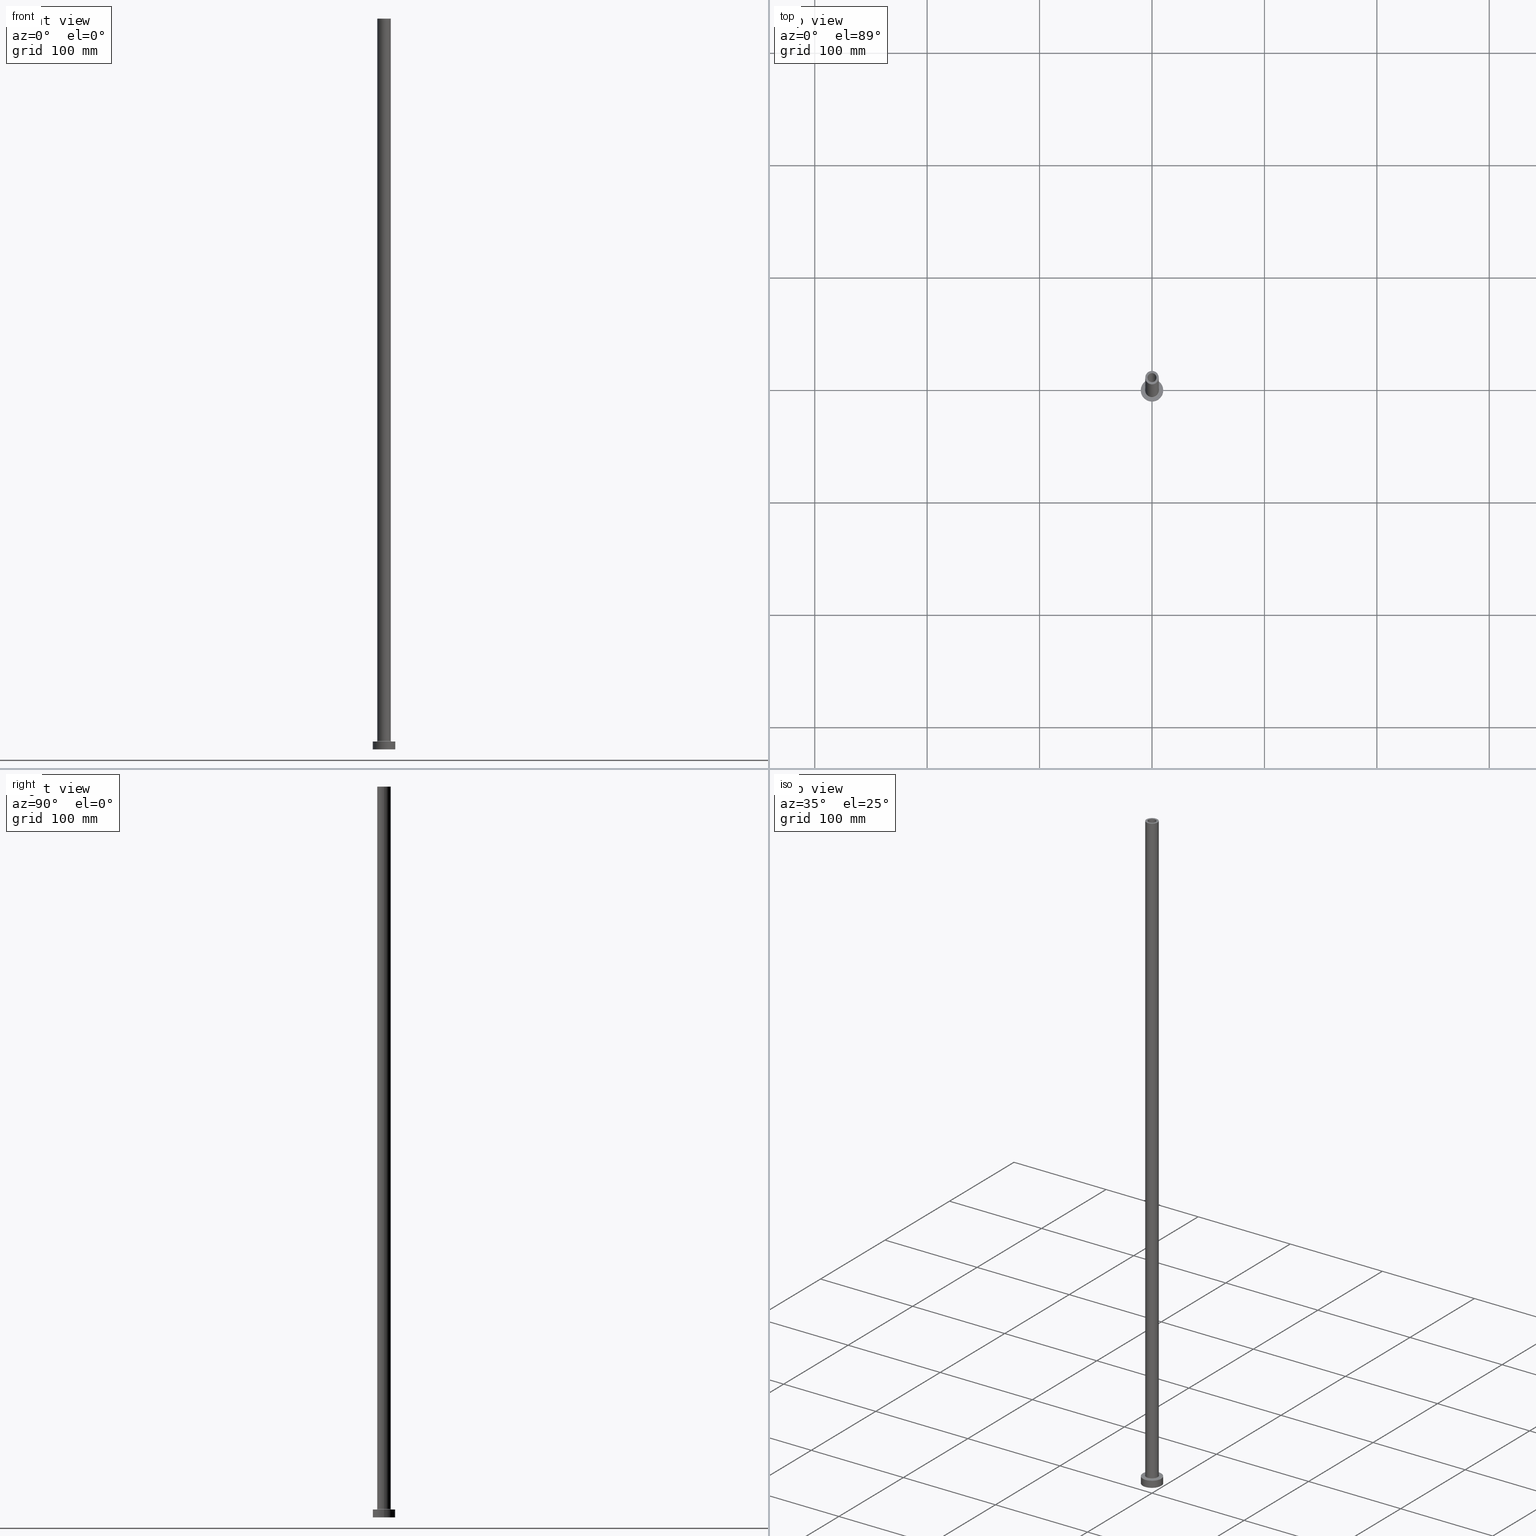
[diagram: canonical four-view strip — front | top / right | iso, engineering-drawing reading convention]
A machine part, canonical four-view strip (front | top / right | iso — engineering-drawing reading convention). The complete STEP part file that produces these views, byte-faithful:
ISO-10303-21;
HEADER;
FILE_DESCRIPTION (( 'STEP AP203' ),
    '1' );
FILE_NAME ('916c.STEP',
    '2023-02-13T12:42:46',
    ( '' ),
    ( '' ),
    'SwSTEP 2.0',
    'SolidWorks 2019',
    '' );
FILE_SCHEMA (( 'CONFIG_CONTROL_DESIGN' ));
ENDSEC;

DATA;
#1 = DIRECTION ( 'NONE',  ( 1.000000000000000000, 0.000000000000000000, 0.000000000000000000 ) ) ;
#2 = ADVANCED_FACE ( 'NONE', ( #196 ), #406, .F. ) ;
#3 = DIRECTION ( 'NONE',  ( 1.000000000000000000, 0.000000000000000000, 0.000000000000000000 ) ) ;
#4 = CIRCLE ( 'NONE', #147, 0.7000000000000000666 ) ;
#5 = AXIS2_PLACEMENT_3D ( 'NONE', #193, #288, #90 ) ;
#6 = PERSON_AND_ORGANIZATION_ROLE ( 'creator' ) ;
#7 = DIRECTION ( 'NONE',  ( 0.000000000000000000, 0.000000000000000000, -1.000000000000000000 ) ) ;
#8 = FACE_OUTER_BOUND ( 'NONE', #334, .T. ) ;
#9 = DIRECTION ( 'NONE',  ( 1.000000000000000000, 0.000000000000000000, 0.000000000000000000 ) ) ;
#10 = APPROVAL_STATUS ( 'not_yet_approved' ) ;
#11 = CARTESIAN_POINT ( 'NONE',  ( -4.000000000000000000, 0.000000000000000000, 650.0000000000000000 ) ) ;
#12 = PRODUCT ( '916c', '916c', '', ( #375 ) ) ;
#13 = AXIS2_PLACEMENT_3D ( 'NONE', #162, #256, #84 ) ;
#14 = DIRECTION ( 'NONE',  ( -0.000000000000000000, -0.000000000000000000, -1.000000000000000000 ) ) ;
#15 = DIRECTION ( 'NONE',  ( 1.000000000000000000, 0.000000000000000000, 0.000000000000000000 ) ) ;
#16 = EDGE_CURVE ( 'NONE', #115, #215, #354, .T. ) ;
#17 = ADVANCED_FACE ( 'NONE', ( #43 ), #257, .F. ) ;
#18 = ORIENTED_EDGE ( 'NONE', *, *, #16, .F. ) ;
#19 = PERSON ( 'NEUR�EN�', 'NEUR�EN�', 'NEUR�EN�', ('NEUR�EN�'), ('NEUR�EN�'), ('NEUR�EN�') ) ;
#20 = AXIS2_PLACEMENT_3D ( 'NONE', #435, #431, #328 ) ;
#21 = AXIS2_PLACEMENT_3D ( 'NONE', #271, #104, #226 ) ;
#22 = FACE_OUTER_BOUND ( 'NONE', #415, .T. ) ;
#23 = ORIENTED_EDGE ( 'NONE', *, *, #253, .F. ) ;
#24 = EDGE_CURVE ( 'NONE', #237, #235, #102, .T. ) ;
#25 = CARTESIAN_POINT ( 'NONE',  ( 0.000000000000000000, 0.000000000000000000, 650.0000000000000000 ) ) ;
#26 = EDGE_LOOP ( 'NONE', ( #40, #403, #383, #18 ) ) ;
#27 = ADVANCED_FACE ( 'NONE', ( #22 ), #363, .F. ) ;
#28 = ORIENTED_EDGE ( 'NONE', *, *, #108, .T. ) ;
#29 = AXIS2_PLACEMENT_3D ( 'NONE', #285, #434, #123 ) ;
#30 = CARTESIAN_POINT ( 'NONE',  ( 4.000000000000000000, 4.898587196589412829E-16, 605.0000000000000000 ) ) ;
#31 = EDGE_LOOP ( 'NONE', ( #404, #449, #278, #336 ) ) ;
#32 = CYLINDRICAL_SURFACE ( 'NONE', #122, 4.150000000000000355 ) ;
#33 = ORIENTED_EDGE ( 'NONE', *, *, #428, .F. ) ;
#34 = PRODUCT_RELATED_PRODUCT_CATEGORY ( 'detail', '', ( #12 ) ) ;
#35 = DIRECTION ( 'NONE',  ( -1.000000000000000000, 0.000000000000000000, 0.000000000000000000 ) ) ;
#36 = ORIENTED_EDGE ( 'NONE', *, *, #107, .T. ) ;
#37 =( NAMED_UNIT ( * ) PLANE_ANGLE_UNIT ( ) SI_UNIT ( $, .RADIAN. ) );
#38 = AXIS2_PLACEMENT_3D ( 'NONE', #353, #185, #361 ) ;
#39 = DIRECTION ( 'NONE',  ( -1.000000000000000000, 0.000000000000000000, 0.000000000000000000 ) ) ;
#40 = ORIENTED_EDGE ( 'NONE', *, *, #165, .T. ) ;
#41 = COORDINATED_UNIVERSAL_TIME_OFFSET ( 1, 0, .AHEAD. ) ;
#42 = ADVANCED_FACE ( 'NONE', ( #66, #300 ), #61, .F. ) ;
#43 = FACE_OUTER_BOUND ( 'NONE', #95, .T. ) ;
#44 = APPROVAL_ROLE ( '' ) ;
#45 = CARTESIAN_POINT ( 'NONE',  ( -6.700000000000001066, 8.205133554287267548E-16, 7.000000000000020428 ) ) ;
#46 = VECTOR ( 'NONE', #405, 1000.000000000000000 ) ;
#47 = PERSON_AND_ORGANIZATION_ROLE ( 'design_supplier' ) ;
#48 = CC_DESIGN_SECURITY_CLASSIFICATION ( #303, ( #141 ) ) ;
#49 = CARTESIAN_POINT ( 'NONE',  ( 6.700000000000001066, 0.000000000000000000, 7.000000000000020428 ) ) ;
#50 = EDGE_CURVE ( 'NONE', #235, #237, #302, .T. ) ;
#51 = FACE_BOUND ( 'NONE', #217, .T. ) ;
#52 = VERTEX_POINT ( 'NONE', #438 ) ;
#53 = CARTESIAN_POINT ( 'NONE',  ( 0.000000000000000000, 0.000000000000000000, 605.0000000000000000 ) ) ;
#54 = CIRCLE ( 'NONE', #337, 4.000000000000000000 ) ;
#55 = ORIENTED_EDGE ( 'NONE', *, *, #392, .T. ) ;
#56 = APPROVAL_PERSON_ORGANIZATION ( #380, #58, #44 ) ;
#57 = CARTESIAN_POINT ( 'NONE',  ( 0.000000000000000000, 0.000000000000000000, 605.0000000000000000 ) ) ;
#58 = APPROVAL ( #10, 'NEUR�EN�' ) ;
#59 = CARTESIAN_POINT ( 'NONE',  ( -6.000000000000000888, 0.000000000000000000, 650.0000000000000000 ) ) ;
#60 = DIRECTION ( 'NONE',  ( 0.000000000000000000, 0.000000000000000000, -1.000000000000000000 ) ) ;
#61 = PLANE ( 'NONE',  #246 ) ;
#62 = ORIENTED_EDGE ( 'NONE', *, *, #429, .F. ) ;
#63 = FACE_OUTER_BOUND ( 'NONE', #171, .T. ) ;
#64 = ORIENTED_EDGE ( 'NONE', *, *, #119, .T. ) ;
#65 = AXIS2_PLACEMENT_3D ( 'NONE', #379, #114, #347 ) ;
#66 = FACE_BOUND ( 'NONE', #232, .T. ) ;
#67 = ORIENTED_EDGE ( 'NONE', *, *, #79, .T. ) ;
#68 = EDGE_CURVE ( 'NONE', #268, #295, #417, .T. ) ;
#69 = ORIENTED_EDGE ( 'NONE', *, *, #329, .T. ) ;
#70 = LINE ( 'NONE', #345, #407 ) ;
#71 = CARTESIAN_POINT ( 'NONE',  ( 0.000000000000000000, 0.000000000000000000, 650.0000000000000000 ) ) ;
#72 = ORIENTED_EDGE ( 'NONE', *, *, #378, .F. ) ;
#73 = VECTOR ( 'NONE', #14, 1000.000000000000000 ) ;
#74 = CIRCLE ( 'NONE', #176, 4.000000000000000000 ) ;
#75 = DIRECTION ( 'NONE',  ( -0.000000000000000000, -0.000000000000000000, -1.000000000000000000 ) ) ;
#76 = FACE_OUTER_BOUND ( 'NONE', #91, .T. ) ;
#77 = FACE_OUTER_BOUND ( 'NONE', #145, .T. ) ;
#78 = ORIENTED_EDGE ( 'NONE', *, *, #198, .T. ) ;
#79 = EDGE_CURVE ( 'NONE', #394, #282, #4, .T. ) ;
#80 = PLANE ( 'NONE',  #166 ) ;
#81 = AXIS2_PLACEMENT_3D ( 'NONE', #57, #94, #332 ) ;
#82 = DATE_AND_TIME ( #291, #418 ) ;
#83 = APPLICATION_CONTEXT ( 'configuration controlled 3d designs of mechanical parts and assemblies' ) ;
#84 = DIRECTION ( 'NONE',  ( 1.000000000000000000, 0.000000000000000000, 0.000000000000000000 ) ) ;
#85 = EDGE_LOOP ( 'NONE', ( #455, #69 ) ) ;
#86 = COORDINATED_UNIVERSAL_TIME_OFFSET ( 1, 0, .AHEAD. ) ;
#87 = DIRECTION ( 'NONE',  ( 1.000000000000000000, 0.000000000000000000, 0.000000000000000000 ) ) ;
#88 = ORIENTED_EDGE ( 'NONE', *, *, #50, .T. ) ;
#89 = CALENDAR_DATE ( 2023, 13, 2 ) ;
#90 = DIRECTION ( 'NONE',  ( 1.000000000000000000, 0.000000000000000000, -0.000000000000000000 ) ) ;
#91 = EDGE_LOOP ( 'NONE', ( #180, #286, #55, #88 ) ) ;
#92 = AXIS2_PLACEMENT_3D ( 'NONE', #362, #222, #3 ) ;
#93 = SECURITY_CLASSIFICATION_LEVEL ( 'unclassified' ) ;
#94 = DIRECTION ( 'NONE',  ( 0.000000000000000000, 0.000000000000000000, 1.000000000000000000 ) ) ;
#95 = EDGE_LOOP ( 'NONE', ( #28, #327, #177, #376 ) ) ;
#96 = AXIS2_PLACEMENT_3D ( 'NONE', #439, #398, #200 ) ;
#97 = DIRECTION ( 'NONE',  ( 1.000000000000000000, 0.000000000000000000, 0.000000000000000000 ) ) ;
#98 = EDGE_LOOP ( 'NONE', ( #178, #67, #243, #442 ) ) ;
#99 = DIRECTION ( 'NONE',  ( 1.000000000000000000, 0.000000000000000000, 0.000000000000000000 ) ) ;
#100 = VERTEX_POINT ( 'NONE', #59 ) ;
#101 = ORIENTED_EDGE ( 'NONE', *, *, #128, .F. ) ;
#102 = CIRCLE ( 'NONE', #350, 4.150000000000000355 ) ;
#103 = AXIS2_PLACEMENT_3D ( 'NONE', #118, #7, #39 ) ;
#104 = DIRECTION ( 'NONE',  ( -0.000000000000000000, -0.000000000000000000, -1.000000000000000000 ) ) ;
#105 = DESIGN_CONTEXT ( 'detailed design', #83, 'design' ) ;
#106 = CARTESIAN_POINT ( 'NONE',  ( 0.000000000000000000, 0.000000000000000000, 0.000000000000000000 ) ) ;
#107 = EDGE_CURVE ( 'NONE', #52, #305, #132, .T. ) ;
#108 = EDGE_CURVE ( 'NONE', #153, #290, #359, .T. ) ;
#109 = DIRECTION ( 'NONE',  ( 0.000000000000000000, 0.000000000000000000, -1.000000000000000000 ) ) ;
#110 = ORIENTED_EDGE ( 'NONE', *, *, #116, .T. ) ;
#111 = AXIS2_PLACEMENT_3D ( 'NONE', #333, #138, #97 ) ;
#112 = LOCAL_TIME ( 13, 42, 46.00000000000000000, #258 ) ;
#113 = VERTEX_POINT ( 'NONE', #440 ) ;
#114 = DIRECTION ( 'NONE',  ( 0.000000000000000000, 0.000000000000000000, 1.000000000000000000 ) ) ;
#115 = VERTEX_POINT ( 'NONE', #365 ) ;
#116 = EDGE_CURVE ( 'NONE', #157, #52, #381, .T. ) ;
#117 = APPLICATION_PROTOCOL_DEFINITION ( 'international standard', 'config_control_design', 1994, #409 ) ;
#118 = CARTESIAN_POINT ( 'NONE',  ( 0.000000000000000000, 0.000000000000000000, 650.0000000000000000 ) ) ;
#119 = EDGE_CURVE ( 'NONE', #113, #305, #252, .T. ) ;
#120 = CALENDAR_DATE ( 2023, 13, 2 ) ;
#121 = CARTESIAN_POINT ( 'NONE',  ( -10.00000000000000000, 0.000000000000000000, 0.000000000000000000 ) ) ;
#122 = AXIS2_PLACEMENT_3D ( 'NONE', #150, #109, #384 ) ;
#123 = DIRECTION ( 'NONE',  ( 1.000000000000000000, 0.000000000000000000, 0.000000000000000000 ) ) ;
#124 = AXIS2_PLACEMENT_3D ( 'NONE', #159, #355, #87 ) ;
#125 = SHAPE_DEFINITION_REPRESENTATION ( #134, #195 ) ;
#126 = DIRECTION ( 'NONE',  ( 0.000000000000000000, 0.000000000000000000, -1.000000000000000000 ) ) ;
#127 = CARTESIAN_POINT ( 'NONE',  ( 4.150000000000000355, 5.082284216461515156E-16, 605.0000000000000000 ) ) ;
#128 = EDGE_CURVE ( 'NONE', #158, #115, #54, .T. ) ;
#129 = PERSON_AND_ORGANIZATION_ROLE ( 'classification_officer' ) ;
#130 = ORIENTED_EDGE ( 'NONE', *, *, #119, .F. ) ;
#131 = AXIS2_PLACEMENT_3D ( 'NONE', #184, #424, #391 ) ;
#132 = LINE ( 'NONE', #330, #73 ) ;
#133 = APPROVAL ( #386, 'NEUR�EN�' ) ;
#134 = PRODUCT_DEFINITION_SHAPE ( 'NONE', 'NONE',  #448 ) ;
#135 = DIRECTION ( 'NONE',  ( 0.000000000000000000, -1.000000000000000000, 0.000000000000000000 ) ) ;
#136 = ADVANCED_FACE ( 'NONE', ( #76 ), #32, .F. ) ;
#137 = EDGE_LOOP ( 'NONE', ( #173, #130 ) ) ;
#138 = DIRECTION ( 'NONE',  ( 0.000000000000000000, 0.000000000000000000, 1.000000000000000000 ) ) ;
#139 = AXIS2_PLACEMENT_3D ( 'NONE', #441, #135, #239 ) ;
#140 = ORIENTED_EDGE ( 'NONE', *, *, #107, .F. ) ;
#141 = PRODUCT_DEFINITION_FORMATION_WITH_SPECIFIED_SOURCE ( 'LIBOVOLN�', '', #12, .NOT_KNOWN. ) ;
#142 = CARTESIAN_POINT ( 'NONE',  ( 4.150000000000000355, 5.082284216461515156E-16, 616.7379725676967155 ) ) ;
#143 = CARTESIAN_POINT ( 'NONE',  ( 0.000000000000000000, 0.000000000000000000, 650.0000000000000000 ) ) ;
#144 = CC_DESIGN_PERSON_AND_ORGANIZATION_ASSIGNMENT ( #358, #6, ( #141 ) ) ;
#145 = EDGE_LOOP ( 'NONE', ( #344, #274, #148, #33 ) ) ;
#146 = VERTEX_POINT ( 'NONE', #30 ) ;
#147 = AXIS2_PLACEMENT_3D ( 'NONE', #207, #341, #262 ) ;
#148 = ORIENTED_EDGE ( 'NONE', *, *, #260, .T. ) ;
#149 = EDGE_CURVE ( 'NONE', #158, #146, #156, .T. ) ;
#150 = CARTESIAN_POINT ( 'NONE',  ( 0.000000000000000000, 0.000000000000000000, 616.7379725676967155 ) ) ;
#151 =( LENGTH_UNIT ( ) NAMED_UNIT ( * ) SI_UNIT ( .MILLI., .METRE. ) );
#152 = DIRECTION ( 'NONE',  ( 0.000000000000000000, 0.000000000000000000, 1.000000000000000000 ) ) ;
#153 = VERTEX_POINT ( 'NONE', #309 ) ;
#154 = VECTOR ( 'NONE', #275, 1000.000000000000000 ) ;
#155 = CC_DESIGN_APPROVAL ( #133, ( #303 ) ) ;
#156 = LINE ( 'NONE', #453, #154 ) ;
#157 = VERTEX_POINT ( 'NONE', #414 ) ;
#158 = VERTEX_POINT ( 'NONE', #277 ) ;
#159 = CARTESIAN_POINT ( 'NONE',  ( 0.000000000000000000, 0.000000000000000000, 7.700000000000040146 ) ) ;
#160 = CC_DESIGN_DATE_AND_TIME_ASSIGNMENT ( #351, #352, ( #448 ) ) ;
#161 = CARTESIAN_POINT ( 'NONE',  ( 0.000000000000000000, 0.000000000000000000, 605.0000000000000000 ) ) ;
#162 = CARTESIAN_POINT ( 'NONE',  ( 0.000000000000000000, 0.000000000000000000, 0.000000000000000000 ) ) ;
#163 = DIRECTION ( 'NONE',  ( 0.000000000000000000, 0.000000000000000000, 1.000000000000000000 ) ) ;
#164 = PLANE ( 'NONE',  #5 ) ;
#165 = EDGE_CURVE ( 'NONE', #115, #158, #74, .T. ) ;
#166 = AXIS2_PLACEMENT_3D ( 'NONE', #161, #223, #289 ) ;
#167 = CYLINDRICAL_SURFACE ( 'NONE', #96, 10.00000000000000000 ) ;
#168 = CARTESIAN_POINT ( 'NONE',  ( 0.000000000000000000, 0.000000000000000000, 605.0000000000000000 ) ) ;
#169 = EDGE_LOOP ( 'NONE', ( #187, #422 ) ) ;
#170 = APPROVAL_PERSON_ORGANIZATION ( #192, #133, #317 ) ;
#171 = EDGE_LOOP ( 'NONE', ( #62, #204, #36, #402 ) ) ;
#172 = DIRECTION ( 'NONE',  ( 0.000000000000000000, 0.000000000000000000, 1.000000000000000000 ) ) ;
#173 = ORIENTED_EDGE ( 'NONE', *, *, #293, .F. ) ;
#174 = APPLICATION_PROTOCOL_DEFINITION ( 'international standard', 'config_control_design', 1994, #83 ) ;
#175 = EDGE_CURVE ( 'NONE', #295, #282, #199, .T. ) ;
#176 = AXIS2_PLACEMENT_3D ( 'NONE', #242, #245, #273 ) ;
#177 = ORIENTED_EDGE ( 'NONE', *, *, #24, .T. ) ;
#178 = ORIENTED_EDGE ( 'NONE', *, *, #314, .F. ) ;
#179 = MANIFOLD_SOLID_BREP ( 'Odebrat vysunut�m4', #400 ) ;
#180 = ORIENTED_EDGE ( 'NONE', *, *, #348, .F. ) ;
#181 = ADVANCED_FACE ( 'NONE', ( #249 ), #281, .T. ) ;
#182 = FACE_OUTER_BOUND ( 'NONE', #313, .T. ) ;
#183 = CALENDAR_DATE ( 2023, 13, 2 ) ;
#184 = CARTESIAN_POINT ( 'NONE',  ( 0.000000000000000000, 0.000000000000000000, 7.700000000000040146 ) ) ;
#185 = DIRECTION ( 'NONE',  ( 0.000000000000000000, 0.000000000000000000, 1.000000000000000000 ) ) ;
#186 = EDGE_CURVE ( 'NONE', #52, #157, #338, .T. ) ;
#187 = ORIENTED_EDGE ( 'NONE', *, *, #421, .T. ) ;
#188 = ADVANCED_FACE ( 'NONE', ( #77 ), #211, .T. ) ;
#189 = APPROVAL_DATE_TIME ( #296, #444 ) ;
#190 = CIRCLE ( 'NONE', #21, 6.700000000000001066 ) ;
#191 = ORIENTED_EDGE ( 'NONE', *, *, #175, .T. ) ;
#192 = PERSON_AND_ORGANIZATION ( #19, #401 ) ;
#193 = CARTESIAN_POINT ( 'NONE',  ( 0.000000000000000000, 0.000000000000000000, 7.000000000000000000 ) ) ;
#194 = CARTESIAN_POINT ( 'NONE',  ( -4.150000000000000355, 0.000000000000000000, 0.000000000000000000 ) ) ;
#195 = ADVANCED_BREP_SHAPE_REPRESENTATION ( '916c', ( #179, #254 ), #389 ) ;
#196 = FACE_OUTER_BOUND ( 'NONE', #98, .T. ) ;
#197 = DIRECTION ( 'NONE',  ( 0.000000000000000000, 0.000000000000000000, 1.000000000000000000 ) ) ;
#198 = EDGE_CURVE ( 'NONE', #282, #295, #190, .T. ) ;
#199 = CIRCLE ( 'NONE', #426, 6.700000000000001066 ) ;
#200 = DIRECTION ( 'NONE',  ( -1.000000000000000000, 0.000000000000000000, 0.000000000000000000 ) ) ;
#201 = DIRECTION ( 'NONE',  ( 0.000000000000000000, 0.000000000000000000, -1.000000000000000000 ) ) ;
#202 = CARTESIAN_POINT ( 'NONE',  ( -6.000000000000000888, 0.000000000000000000, 7.700000000000040146 ) ) ;
#203 = DIRECTION ( 'NONE',  ( -1.000000000000000000, 0.000000000000000000, 0.000000000000000000 ) ) ;
#204 = ORIENTED_EDGE ( 'NONE', *, *, #186, .F. ) ;
#205 = ADVANCED_FACE ( 'NONE', ( #356 ), #323, .F. ) ;
#206 = AXIS2_PLACEMENT_3D ( 'NONE', #321, #326, #9 ) ;
#207 = CARTESIAN_POINT ( 'NONE',  ( -6.700000000000001066, 8.205133554287267548E-16, 7.700000000000040146 ) ) ;
#208 = EDGE_LOOP ( 'NONE', ( #370, #23, #342, #346 ) ) ;
#209 = PERSON_AND_ORGANIZATION ( #19, #401 ) ;
#210 = CC_DESIGN_PERSON_AND_ORGANIZATION_ASSIGNMENT ( #393, #47, ( #141 ) ) ;
#211 = CYLINDRICAL_SURFACE ( 'NONE', #248, 6.000000000000000888 ) ;
#212 = AXIS2_PLACEMENT_3D ( 'NONE', #53, #197, #99 ) ;
#213 = DIRECTION ( 'NONE',  ( 1.000000000000000000, 0.000000000000000000, 0.000000000000000000 ) ) ;
#214 = ADVANCED_FACE ( 'NONE', ( #228, #182 ), #80, .F. ) ;
#215 = VERTEX_POINT ( 'NONE', #259 ) ;
#216 = CARTESIAN_POINT ( 'NONE',  ( -6.000000000000000888, 0.000000000000000000, 650.0000000000000000 ) ) ;
#217 = EDGE_LOOP ( 'NONE', ( #191, #78 ) ) ;
#218 = AXIS2_PLACEMENT_3D ( 'NONE', #143, #201, #203 ) ;
#219 = ADVANCED_FACE ( 'NONE', ( #349, #315 ), #319, .T. ) ;
#220 = CIRCLE ( 'NONE', #29, 6.000000000000000888 ) ;
#221 = APPROVAL_DATE_TIME ( #82, #133 ) ;
#222 = DIRECTION ( 'NONE',  ( 0.000000000000000000, 0.000000000000000000, 1.000000000000000000 ) ) ;
#223 = DIRECTION ( 'NONE',  ( 0.000000000000000000, 0.000000000000000000, 1.000000000000000000 ) ) ;
#224 = ORIENTED_EDGE ( 'NONE', *, *, #50, .F. ) ;
#225 = CARTESIAN_POINT ( 'NONE',  ( 0.000000000000000000, 0.000000000000000000, 650.0000000000000000 ) ) ;
#226 = DIRECTION ( 'NONE',  ( 1.000000000000000000, 0.000000000000000000, 0.000000000000000000 ) ) ;
#227 = CALENDAR_DATE ( 2023, 13, 2 ) ;
#228 = FACE_BOUND ( 'NONE', #169, .T. ) ;
#229 = AXIS2_PLACEMENT_3D ( 'NONE', #436, #433, #318 ) ;
#230 = DATE_TIME_ROLE ( 'classification_date' ) ;
#231 = FACE_OUTER_BOUND ( 'NONE', #31, .T. ) ;
#232 = EDGE_LOOP ( 'NONE', ( #224, #374 ) ) ;
#233 = CIRCLE ( 'NONE', #92, 4.150000000000000355 ) ;
#234 = DIRECTION ( 'NONE',  ( 1.000000000000000000, 0.000000000000000000, 0.000000000000000000 ) ) ;
#235 = VERTEX_POINT ( 'NONE', #194 ) ;
#236 = LINE ( 'NONE', #443, #241 ) ;
#237 = VERTEX_POINT ( 'NONE', #459 ) ;
#238 = DIRECTION ( 'NONE',  ( 1.000000000000000000, 0.000000000000000000, -0.000000000000000000 ) ) ;
#239 = DIRECTION ( 'NONE',  ( 0.000000000000000000, 0.000000000000000000, -1.000000000000000000 ) ) ;
#240 = VECTOR ( 'NONE', #126, 1000.000000000000000 ) ;
#241 = VECTOR ( 'NONE', #371, 1000.000000000000000 ) ;
#242 = CARTESIAN_POINT ( 'NONE',  ( 0.000000000000000000, 0.000000000000000000, 650.0000000000000000 ) ) ;
#243 = ORIENTED_EDGE ( 'NONE', *, *, #175, .F. ) ;
#244 = PERSON_AND_ORGANIZATION_ROLE ( 'design_owner' ) ;
#245 = DIRECTION ( 'NONE',  ( 0.000000000000000000, 0.000000000000000000, 1.000000000000000000 ) ) ;
#246 = AXIS2_PLACEMENT_3D ( 'NONE', #267, #397, #238 ) ;
#247 = DIRECTION ( 'NONE',  ( -0.000000000000000000, -0.000000000000000000, -1.000000000000000000 ) ) ;
#248 = AXIS2_PLACEMENT_3D ( 'NONE', #25, #307, #447 ) ;
#249 = FACE_OUTER_BOUND ( 'NONE', #208, .T. ) ;
#250 = APPROVAL_STATUS ( 'not_yet_approved' ) ;
#251 = DATE_AND_TIME ( #120, #263 ) ;
#252 = CIRCLE ( 'NONE', #279, 10.00000000000000000 ) ;
#253 = EDGE_CURVE ( 'NONE', #100, #367, #220, .T. ) ;
#254 = AXIS2_PLACEMENT_3D ( 'NONE', #106, #343, #456 ) ;
#255 = VECTOR ( 'NONE', #60, 1000.000000000000000 ) ;
#256 = DIRECTION ( 'NONE',  ( 0.000000000000000000, 0.000000000000000000, 1.000000000000000000 ) ) ;
#257 = CYLINDRICAL_SURFACE ( 'NONE', #20, 4.150000000000000355 ) ;
#258 = COORDINATED_UNIVERSAL_TIME_OFFSET ( 1, 0, .AHEAD. ) ;
#259 = CARTESIAN_POINT ( 'NONE',  ( -4.000000000000000000, 0.000000000000000000, 605.0000000000000000 ) ) ;
#260 = EDGE_CURVE ( 'NONE', #268, #394, #451, .T. ) ;
#261 = UNCERTAINTY_MEASURE_WITH_UNIT (LENGTH_MEASURE( 1.000000000000000082E-05 ), #151, 'distance_accuracy_value', 'NONE');
#262 = DIRECTION ( 'NONE',  ( -1.000000000000000000, 1.224646799147353454E-16, 0.000000000000000000 ) ) ;
#263 = LOCAL_TIME ( 13, 42, 46.00000000000000000, #86 ) ;
#264 = DIRECTION ( 'NONE',  ( -0.000000000000000000, -0.000000000000000000, -1.000000000000000000 ) ) ;
#265 = ORIENTED_EDGE ( 'NONE', *, *, #149, .F. ) ;
#266 = CARTESIAN_POINT ( 'NONE',  ( 6.000000000000000888, 7.347880794884120722E-16, 650.0000000000000000 ) ) ;
#267 = CARTESIAN_POINT ( 'NONE',  ( 0.000000000000000000, 0.000000000000000000, 0.000000000000000000 ) ) ;
#268 = VERTEX_POINT ( 'NONE', #461 ) ;
#269 = ADVANCED_FACE ( 'NONE', ( #51, #8 ), #164, .T. ) ;
#270 = DIRECTION ( 'NONE',  ( 0.000000000000000000, 0.000000000000000000, 1.000000000000000000 ) ) ;
#271 = CARTESIAN_POINT ( 'NONE',  ( 0.000000000000000000, 0.000000000000000000, 7.000000000000000000 ) ) ;
#272 = CIRCLE ( 'NONE', #81, 4.000000000000000000 ) ;
#273 = DIRECTION ( 'NONE',  ( 1.000000000000000000, 0.000000000000000000, 0.000000000000000000 ) ) ;
#274 = ORIENTED_EDGE ( 'NONE', *, *, #340, .T. ) ;
#275 = DIRECTION ( 'NONE',  ( 0.000000000000000000, 0.000000000000000000, -1.000000000000000000 ) ) ;
#276 = CC_DESIGN_DATE_AND_TIME_ASSIGNMENT ( #460, #230, ( #303 ) ) ;
#277 = CARTESIAN_POINT ( 'NONE',  ( 4.000000000000000000, 4.898587196589412829E-16, 650.0000000000000000 ) ) ;
#278 = ORIENTED_EDGE ( 'NONE', *, *, #68, .T. ) ;
#279 = AXIS2_PLACEMENT_3D ( 'NONE', #454, #172, #408 ) ;
#280 = AXIS2_PLACEMENT_3D ( 'NONE', #71, #420, #35 ) ;
#281 = CYLINDRICAL_SURFACE ( 'NONE', #280, 6.000000000000000888 ) ;
#282 = VERTEX_POINT ( 'NONE', #45 ) ;
#283 = CC_DESIGN_PERSON_AND_ORGANIZATION_ASSIGNMENT ( #423, #427, ( #448 ) ) ;
#284 = APPROVAL_ROLE ( '' ) ;
#285 = CARTESIAN_POINT ( 'NONE',  ( 0.000000000000000000, 0.000000000000000000, 650.0000000000000000 ) ) ;
#286 = ORIENTED_EDGE ( 'NONE', *, *, #311, .T. ) ;
#287 = TOROIDAL_SURFACE ( 'NONE', #131, 6.700000000000001066, 0.6999999999999999556 ) ;
#288 = DIRECTION ( 'NONE',  ( 0.000000000000000000, 0.000000000000000000, 1.000000000000000000 ) ) ;
#289 = DIRECTION ( 'NONE',  ( 1.000000000000000000, 0.000000000000000000, -0.000000000000000000 ) ) ;
#290 = VERTEX_POINT ( 'NONE', #127 ) ;
#291 = CALENDAR_DATE ( 2023, 13, 2 ) ;
#292 = FACE_OUTER_BOUND ( 'NONE', #316, .T. ) ;
#293 = EDGE_CURVE ( 'NONE', #305, #113, #395, .T. ) ;
#294 = ADVANCED_FACE ( 'NONE', ( #292 ), #297, .T. ) ;
#295 = VERTEX_POINT ( 'NONE', #49 ) ;
#296 = DATE_AND_TIME ( #89, #445 ) ;
#297 = CYLINDRICAL_SURFACE ( 'NONE', #229, 10.00000000000000000 ) ;
#298 = VECTOR ( 'NONE', #377, 1000.000000000000000 ) ;
#299 = DIRECTION ( 'NONE',  ( 0.000000000000000000, 0.000000000000000000, 1.000000000000000000 ) ) ;
#300 = FACE_OUTER_BOUND ( 'NONE', #137, .T. ) ;
#301 = ORIENTED_EDGE ( 'NONE', *, *, #311, .F. ) ;
#302 = CIRCLE ( 'NONE', #387, 4.150000000000000355 ) ;
#303 = SECURITY_CLASSIFICATION ( '', '', #93 ) ;
#304 = ADVANCED_FACE ( 'NONE', ( #231 ), #287, .F. ) ;
#305 = VERTEX_POINT ( 'NONE', #121 ) ;
#306 = LINE ( 'NONE', #142, #46 ) ;
#307 = DIRECTION ( 'NONE',  ( -0.000000000000000000, -0.000000000000000000, -1.000000000000000000 ) ) ;
#308 = CIRCLE ( 'NONE', #437, 6.000000000000000888 ) ;
#309 = CARTESIAN_POINT ( 'NONE',  ( -4.150000000000000355, 0.000000000000000000, 605.0000000000000000 ) ) ;
#310 = ORIENTED_EDGE ( 'NONE', *, *, #429, .T. ) ;
#311 = EDGE_CURVE ( 'NONE', #290, #153, #233, .T. ) ;
#312 = CARTESIAN_POINT ( 'NONE',  ( 0.000000000000000000, 0.000000000000000000, 650.0000000000000000 ) ) ;
#313 = EDGE_LOOP ( 'NONE', ( #390, #301 ) ) ;
#314 = EDGE_CURVE ( 'NONE', #394, #268, #452, .T. ) ;
#315 = FACE_OUTER_BOUND ( 'NONE', #85, .T. ) ;
#316 = EDGE_LOOP ( 'NONE', ( #412, #310, #64, #140 ) ) ;
#317 = APPROVAL_ROLE ( '' ) ;
#318 = DIRECTION ( 'NONE',  ( -1.000000000000000000, 0.000000000000000000, 0.000000000000000000 ) ) ;
#319 = PLANE ( 'NONE',  #38 ) ;
#320 = PERSON_AND_ORGANIZATION ( #19, #401 ) ;
#321 = CARTESIAN_POINT ( 'NONE',  ( 0.000000000000000000, 0.000000000000000000, 7.700000000000040146 ) ) ;
#322 = CC_DESIGN_APPROVAL ( #58, ( #448 ) ) ;
#323 = CYLINDRICAL_SURFACE ( 'NONE', #103, 4.000000000000000000 ) ;
#324 = ORIENTED_EDGE ( 'NONE', *, *, #165, .F. ) ;
#325 = APPROVAL_DATE_TIME ( #251, #58 ) ;
#326 = DIRECTION ( 'NONE',  ( 0.000000000000000000, 0.000000000000000000, 1.000000000000000000 ) ) ;
#327 = ORIENTED_EDGE ( 'NONE', *, *, #348, .T. ) ;
#328 = DIRECTION ( 'NONE',  ( -1.000000000000000000, 0.000000000000000000, 0.000000000000000000 ) ) ;
#329 = EDGE_CURVE ( 'NONE', #367, #100, #308, .T. ) ;
#330 = CARTESIAN_POINT ( 'NONE',  ( -10.00000000000000000, 0.000000000000000000, 7.000000000000000000 ) ) ;
#331 = ORIENTED_EDGE ( 'NONE', *, *, #128, .T. ) ;
#332 = DIRECTION ( 'NONE',  ( 1.000000000000000000, 0.000000000000000000, 0.000000000000000000 ) ) ;
#333 = CARTESIAN_POINT ( 'NONE',  ( 0.000000000000000000, 0.000000000000000000, 7.000000000000000000 ) ) ;
#334 = EDGE_LOOP ( 'NONE', ( #419, #110 ) ) ;
#335 = DIRECTION ( 'NONE',  ( 1.000000000000000000, 0.000000000000000000, 0.000000000000000000 ) ) ;
#336 = ORIENTED_EDGE ( 'NONE', *, *, #198, .F. ) ;
#337 = AXIS2_PLACEMENT_3D ( 'NONE', #312, #152, #457 ) ;
#338 = CIRCLE ( 'NONE', #65, 10.00000000000000000 ) ;
#339 = DIRECTION ( 'NONE',  ( -0.000000000000000000, -0.000000000000000000, -1.000000000000000000 ) ) ;
#340 = EDGE_CURVE ( 'NONE', #367, #268, #236, .T. ) ;
#341 = DIRECTION ( 'NONE',  ( 1.224646799147353207E-16, 1.000000000000000000, -0.000000000000000000 ) ) ;
#342 = ORIENTED_EDGE ( 'NONE', *, *, #428, .T. ) ;
#343 = DIRECTION ( 'NONE',  ( 0.000000000000000000, 0.000000000000000000, 1.000000000000000000 ) ) ;
#344 = ORIENTED_EDGE ( 'NONE', *, *, #329, .F. ) ;
#345 = CARTESIAN_POINT ( 'NONE',  ( 10.00000000000000000, 1.224646799147353256E-15, 7.000000000000000000 ) ) ;
#346 = ORIENTED_EDGE ( 'NONE', *, *, #314, .T. ) ;
#347 = DIRECTION ( 'NONE',  ( 1.000000000000000000, 0.000000000000000000, 0.000000000000000000 ) ) ;
#348 = EDGE_CURVE ( 'NONE', #290, #237, #306, .T. ) ;
#349 = FACE_BOUND ( 'NONE', #385, .T. ) ;
#350 = AXIS2_PLACEMENT_3D ( 'NONE', #396, #339, #369 ) ;
#351 = DATE_AND_TIME ( #227, #364 ) ;
#352 = DATE_TIME_ROLE ( 'creation_date' ) ;
#353 = CARTESIAN_POINT ( 'NONE',  ( 0.000000000000000000, 0.000000000000000000, 650.0000000000000000 ) ) ;
#354 = LINE ( 'NONE', #11, #240 ) ;
#355 = DIRECTION ( 'NONE',  ( 0.000000000000000000, 0.000000000000000000, 1.000000000000000000 ) ) ;
#356 = FACE_OUTER_BOUND ( 'NONE', #26, .T. ) ;
#357 = CC_DESIGN_PERSON_AND_ORGANIZATION_ASSIGNMENT ( #320, #129, ( #303 ) ) ;
#358 = PERSON_AND_ORGANIZATION ( #19, #401 ) ;
#359 = CIRCLE ( 'NONE', #450, 4.150000000000000355 ) ;
#360 = CC_DESIGN_APPROVAL ( #444, ( #141 ) ) ;
#361 = DIRECTION ( 'NONE',  ( 1.000000000000000000, 0.000000000000000000, -0.000000000000000000 ) ) ;
#362 = CARTESIAN_POINT ( 'NONE',  ( 0.000000000000000000, 0.000000000000000000, 605.0000000000000000 ) ) ;
#363 = CYLINDRICAL_SURFACE ( 'NONE', #218, 4.000000000000000000 ) ;
#364 = LOCAL_TIME ( 13, 42, 46.00000000000000000, #430 ) ;
#365 = CARTESIAN_POINT ( 'NONE',  ( -4.000000000000000000, 0.000000000000000000, 650.0000000000000000 ) ) ;
#366 = ORIENTED_EDGE ( 'NONE', *, *, #16, .T. ) ;
#367 = VERTEX_POINT ( 'NONE', #266 ) ;
#368 = LINE ( 'NONE', #399, #255 ) ;
#369 = DIRECTION ( 'NONE',  ( 1.000000000000000000, 0.000000000000000000, 0.000000000000000000 ) ) ;
#370 = ORIENTED_EDGE ( 'NONE', *, *, #340, .F. ) ;
#371 = DIRECTION ( 'NONE',  ( -0.000000000000000000, -0.000000000000000000, -1.000000000000000000 ) ) ;
#372 = AXIS2_PLACEMENT_3D ( 'NONE', #425, #163, #1 ) ;
#373 = CIRCLE ( 'NONE', #212, 4.000000000000000000 ) ;
#374 = ORIENTED_EDGE ( 'NONE', *, *, #24, .F. ) ;
#375 = MECHANICAL_CONTEXT ( 'NONE', #409, 'mechanical' ) ;
#376 = ORIENTED_EDGE ( 'NONE', *, *, #392, .F. ) ;
#377 = DIRECTION ( 'NONE',  ( -0.000000000000000000, -0.000000000000000000, -1.000000000000000000 ) ) ;
#378 = EDGE_CURVE ( 'NONE', #146, #215, #373, .T. ) ;
#379 = CARTESIAN_POINT ( 'NONE',  ( 0.000000000000000000, 0.000000000000000000, 7.000000000000000000 ) ) ;
#380 = PERSON_AND_ORGANIZATION ( #19, #401 ) ;
#381 = CIRCLE ( 'NONE', #111, 10.00000000000000000 ) ;
#382 = APPROVAL_PERSON_ORGANIZATION ( #432, #444, #284 ) ;
#383 = ORIENTED_EDGE ( 'NONE', *, *, #421, .F. ) ;
#384 = DIRECTION ( 'NONE',  ( -1.000000000000000000, 0.000000000000000000, 0.000000000000000000 ) ) ;
#385 = EDGE_LOOP ( 'NONE', ( #324, #101 ) ) ;
#386 = APPROVAL_STATUS ( 'not_yet_approved' ) ;
#387 = AXIS2_PLACEMENT_3D ( 'NONE', #446, #264, #335 ) ;
#388 = COORDINATED_UNIVERSAL_TIME_OFFSET ( 1, 0, .AHEAD. ) ;
#389 =( GEOMETRIC_REPRESENTATION_CONTEXT ( 3 ) GLOBAL_UNCERTAINTY_ASSIGNED_CONTEXT ( ( #261 ) ) GLOBAL_UNIT_ASSIGNED_CONTEXT ( ( #151, #37, #458 ) ) REPRESENTATION_CONTEXT ( 'NONE', 'WORKASPACE' ) );
#390 = ORIENTED_EDGE ( 'NONE', *, *, #108, .F. ) ;
#391 = DIRECTION ( 'NONE',  ( 1.000000000000000000, 0.000000000000000000, 0.000000000000000000 ) ) ;
#392 = EDGE_CURVE ( 'NONE', #153, #235, #368, .T. ) ;
#393 = PERSON_AND_ORGANIZATION ( #19, #401 ) ;
#394 = VERTEX_POINT ( 'NONE', #202 ) ;
#395 = CIRCLE ( 'NONE', #13, 10.00000000000000000 ) ;
#396 = CARTESIAN_POINT ( 'NONE',  ( 0.000000000000000000, 0.000000000000000000, 0.000000000000000000 ) ) ;
#397 = DIRECTION ( 'NONE',  ( 0.000000000000000000, 0.000000000000000000, 1.000000000000000000 ) ) ;
#398 = DIRECTION ( 'NONE',  ( -0.000000000000000000, -0.000000000000000000, -1.000000000000000000 ) ) ;
#399 = CARTESIAN_POINT ( 'NONE',  ( -4.150000000000000355, 0.000000000000000000, 616.7379725676967155 ) ) ;
#400 = CLOSED_SHELL ( 'NONE', ( #205, #17, #2, #188, #294, #413, #269, #42, #181, #219, #304, #136, #214, #27 ) ) ;
#401 = ORGANIZATION ( 'NEUR�EN�', 'NEUR�EN�', '' ) ;
#402 = ORIENTED_EDGE ( 'NONE', *, *, #293, .T. ) ;
#403 = ORIENTED_EDGE ( 'NONE', *, *, #149, .T. ) ;
#404 = ORIENTED_EDGE ( 'NONE', *, *, #79, .F. ) ;
#405 = DIRECTION ( 'NONE',  ( 0.000000000000000000, 0.000000000000000000, -1.000000000000000000 ) ) ;
#406 = TOROIDAL_SURFACE ( 'NONE', #372, 6.700000000000001066, 0.6999999999999999556 ) ;
#407 = VECTOR ( 'NONE', #247, 1000.000000000000000 ) ;
#408 = DIRECTION ( 'NONE',  ( 1.000000000000000000, 0.000000000000000000, 0.000000000000000000 ) ) ;
#409 = APPLICATION_CONTEXT ( 'configuration controlled 3d designs of mechanical parts and assemblies' ) ;
#410 = CC_DESIGN_PERSON_AND_ORGANIZATION_ASSIGNMENT ( #209, #244, ( #12 ) ) ;
#411 = CARTESIAN_POINT ( 'NONE',  ( 0.000000000000000000, 0.000000000000000000, 7.000000000000000000 ) ) ;
#412 = ORIENTED_EDGE ( 'NONE', *, *, #116, .F. ) ;
#413 = ADVANCED_FACE ( 'NONE', ( #63 ), #167, .T. ) ;
#414 = CARTESIAN_POINT ( 'NONE',  ( 10.00000000000000000, 1.224646799147353256E-15, 7.000000000000000000 ) ) ;
#415 = EDGE_LOOP ( 'NONE', ( #265, #331, #366, #72 ) ) ;
#416 = LINE ( 'NONE', #216, #298 ) ;
#417 = CIRCLE ( 'NONE', #139, 0.7000000000000000666 ) ;
#418 = LOCAL_TIME ( 13, 42, 46.00000000000000000, #388 ) ;
#419 = ORIENTED_EDGE ( 'NONE', *, *, #186, .T. ) ;
#420 = DIRECTION ( 'NONE',  ( -0.000000000000000000, -0.000000000000000000, -1.000000000000000000 ) ) ;
#421 = EDGE_CURVE ( 'NONE', #215, #146, #272, .T. ) ;
#422 = ORIENTED_EDGE ( 'NONE', *, *, #378, .T. ) ;
#423 = PERSON_AND_ORGANIZATION ( #19, #401 ) ;
#424 = DIRECTION ( 'NONE',  ( 0.000000000000000000, 0.000000000000000000, 1.000000000000000000 ) ) ;
#425 = CARTESIAN_POINT ( 'NONE',  ( 0.000000000000000000, 0.000000000000000000, 7.700000000000040146 ) ) ;
#426 = AXIS2_PLACEMENT_3D ( 'NONE', #411, #75, #213 ) ;
#427 = PERSON_AND_ORGANIZATION_ROLE ( 'creator' ) ;
#428 = EDGE_CURVE ( 'NONE', #100, #394, #416, .T. ) ;
#429 = EDGE_CURVE ( 'NONE', #157, #113, #70, .T. ) ;
#430 = COORDINATED_UNIVERSAL_TIME_OFFSET ( 1, 0, .AHEAD. ) ;
#431 = DIRECTION ( 'NONE',  ( 0.000000000000000000, 0.000000000000000000, -1.000000000000000000 ) ) ;
#432 = PERSON_AND_ORGANIZATION ( #19, #401 ) ;
#433 = DIRECTION ( 'NONE',  ( -0.000000000000000000, -0.000000000000000000, -1.000000000000000000 ) ) ;
#434 = DIRECTION ( 'NONE',  ( 0.000000000000000000, 0.000000000000000000, 1.000000000000000000 ) ) ;
#435 = CARTESIAN_POINT ( 'NONE',  ( 0.000000000000000000, 0.000000000000000000, 616.7379725676967155 ) ) ;
#436 = CARTESIAN_POINT ( 'NONE',  ( 0.000000000000000000, 0.000000000000000000, 7.000000000000000000 ) ) ;
#437 = AXIS2_PLACEMENT_3D ( 'NONE', #225, #270, #15 ) ;
#438 = CARTESIAN_POINT ( 'NONE',  ( -10.00000000000000000, 0.000000000000000000, 7.000000000000000000 ) ) ;
#439 = CARTESIAN_POINT ( 'NONE',  ( 0.000000000000000000, 0.000000000000000000, 7.000000000000000000 ) ) ;
#440 = CARTESIAN_POINT ( 'NONE',  ( 10.00000000000000000, 1.224646799147353256E-15, 0.000000000000000000 ) ) ;
#441 = CARTESIAN_POINT ( 'NONE',  ( 6.700000000000001066, 0.000000000000000000, 7.700000000000040146 ) ) ;
#442 = ORIENTED_EDGE ( 'NONE', *, *, #68, .F. ) ;
#443 = CARTESIAN_POINT ( 'NONE',  ( 6.000000000000000888, 7.347880794884120722E-16, 650.0000000000000000 ) ) ;
#444 = APPROVAL ( #250, 'NEUR�EN�' ) ;
#445 = LOCAL_TIME ( 13, 42, 46.00000000000000000, #41 ) ;
#446 = CARTESIAN_POINT ( 'NONE',  ( 0.000000000000000000, 0.000000000000000000, 0.000000000000000000 ) ) ;
#447 = DIRECTION ( 'NONE',  ( -1.000000000000000000, 0.000000000000000000, 0.000000000000000000 ) ) ;
#448 = PRODUCT_DEFINITION ( 'NEZN�M�', '', #141, #105 ) ;
#449 = ORIENTED_EDGE ( 'NONE', *, *, #260, .F. ) ;
#450 = AXIS2_PLACEMENT_3D ( 'NONE', #168, #299, #234 ) ;
#451 = CIRCLE ( 'NONE', #206, 6.000000000000000888 ) ;
#452 = CIRCLE ( 'NONE', #124, 6.000000000000000888 ) ;
#453 = CARTESIAN_POINT ( 'NONE',  ( 4.000000000000000000, 4.898587196589412829E-16, 650.0000000000000000 ) ) ;
#454 = CARTESIAN_POINT ( 'NONE',  ( 0.000000000000000000, 0.000000000000000000, 0.000000000000000000 ) ) ;
#455 = ORIENTED_EDGE ( 'NONE', *, *, #253, .T. ) ;
#456 = DIRECTION ( 'NONE',  ( 1.000000000000000000, 0.000000000000000000, 0.000000000000000000 ) ) ;
#457 = DIRECTION ( 'NONE',  ( 1.000000000000000000, 0.000000000000000000, 0.000000000000000000 ) ) ;
#458 =( NAMED_UNIT ( * ) SI_UNIT ( $, .STERADIAN. ) SOLID_ANGLE_UNIT ( ) );
#459 = CARTESIAN_POINT ( 'NONE',  ( 4.150000000000000355, 5.082284216461515156E-16, 0.000000000000000000 ) ) ;
#460 = DATE_AND_TIME ( #183, #112 ) ;
#461 = CARTESIAN_POINT ( 'NONE',  ( 6.000000000000000888, 7.347880794884120722E-16, 7.700000000000040146 ) ) ;
ENDSEC;
END-ISO-10303-21;
